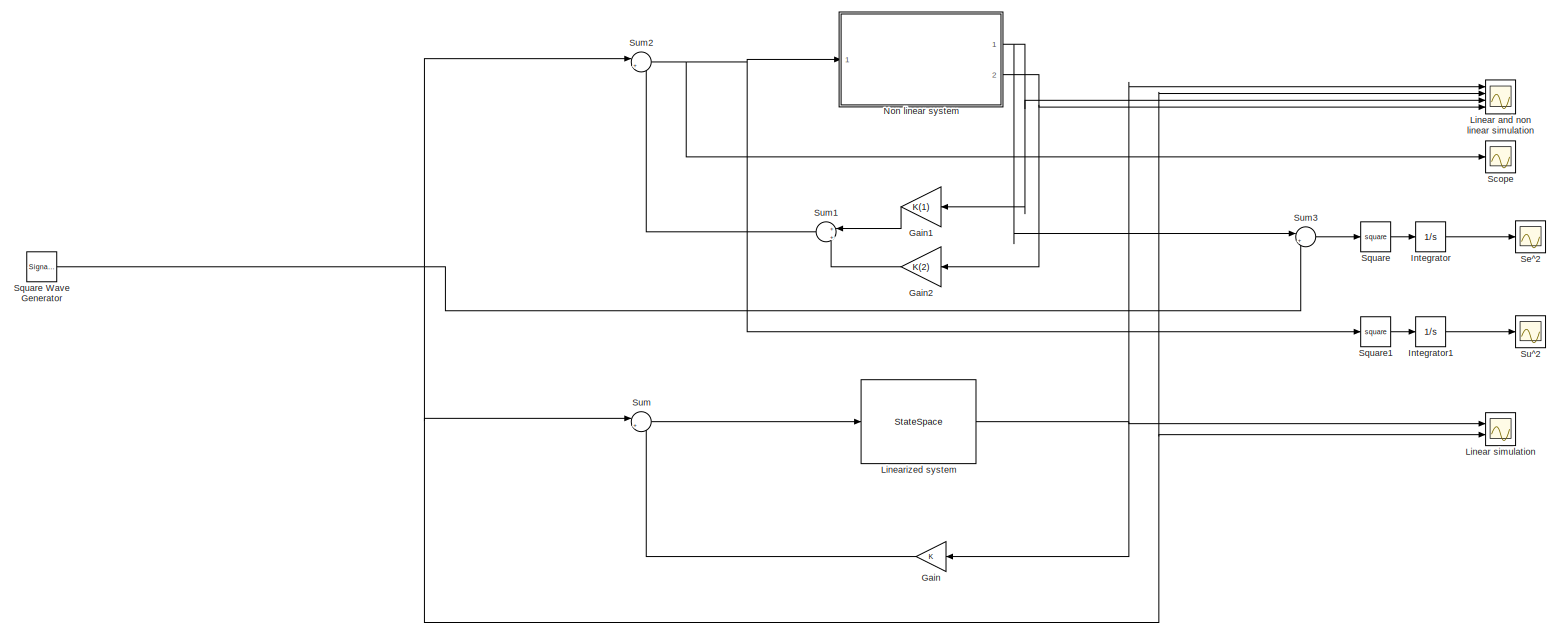
[diagram: root canvas - part 1/1, most of the canvas]
MODEL slx_dc5376960f76
KIND model
CONFIG AbsTol = auto
CONFIG EnableMultiTasking = off
CONFIG FixedStep = auto
CONFIG MaxStep = auto
CONFIG MinStep = auto
CONFIG RelTol = 1e-6
CONFIG SampleTimeConstraint = Unconstrained
CONFIG Solver = ode23
CONFIG SolverName = ode23
CONFIG StartTime = 0.0
CONFIG StopTime = 100
BLOCK [Gain] Gain
  Gain = K
  Multiplication = Matrix(K*u)
  NameLocation = top
BLOCK [Gain] Gain1
  Gain = K(1)
  NameLocation = top
BLOCK [Gain] Gain2
  Gain = K(2)
  NameLocation = top
BLOCK [Integrator] Integrator
  Ports = [1, 1]
BLOCK [Integrator] Integrator1
  Ports = [1, 1]
BLOCK [Scope] Linear and non linear simulation
  Floating = off
  NumInputPorts = 4
  Ports = [4]
  ScopeSpecificationString = Simulink.scopes.TimeScopeBlockCfg('CurrentConfiguration', extmgr.ConfigurationSet(extmgr.Configuration('Core','General UI',true),extmgr.Configuration('Core','Source UI',true),extmgr.Configuration('Sources','WiredSimulink',true),extmgr.Configuration('Visuals','Time Domain',true,'SerializedDisplays',{struct('MinYLimReal','-4.55337','MaxYLimReal','3.36304','YLabelReal','','MinYLimMag','0.00000','MaxY...<+1427ch>
BLOCK [Scope] Linear simulation
  Floating = off
  NumInputPorts = 2
  Ports = [2]
  ScopeSpecificationString = Simulink.scopes.TimeScopeBlockCfg('CurrentConfiguration', extmgr.ConfigurationSet(extmgr.Configuration('Core','General UI',true),extmgr.Configuration('Core','Source UI',true),extmgr.Configuration('Sources','WiredSimulink',true,'DataLoggingVariableName','ScopeData1'),extmgr.Configuration('Visuals','Time Domain',true,'SerializedDisplays',{struct('MinYLimReal','-2.15893','MaxYLimReal','4.32104','YLab...<+1441ch>
BLOCK [StateSpace] Linearized system
  A = A
  B = B
  C = [1 0;0 1]
  D = [0;0]
  InitialCondition = 2
  Ports = [1, 1]
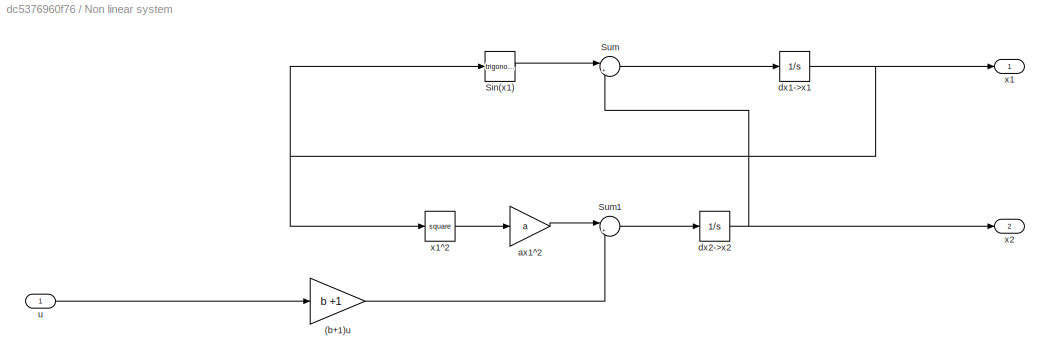
BLOCK [SubSystem] Non linear system
  Ports = [1, 2]
  RequestExecContextInheritance = off
BLOCK [Gain] Non linear system/(b+1)u
  Gain = b +1
BLOCK [Trigonometry] Non linear system/Sin(x1)
  Ports = [1, 1]
BLOCK [Sum] Non linear system/Sum
  Inputs = |++
  Ports = [2, 1]
BLOCK [Sum] Non linear system/Sum1
  Inputs = |++
  Ports = [2, 1]
BLOCK [Gain] Non linear system/ax1^2
  Gain = a
BLOCK [Integrator] Non linear system/dx1->x1
  Ports = [1, 1]
BLOCK [Integrator] Non linear system/dx2->x2
  Ports = [1, 1]
BLOCK [Inport] Non linear system/u
BLOCK [Outport] Non linear system/x1
BLOCK [Math] Non linear system/x1^2
  Operator = square
  Ports = [1, 1]
BLOCK [Outport] Non linear system/x2
  Port = 2
BLOCK [Scope] Scope
  Floating = off
  NumInputPorts = 1
  Ports = [1]
  ScopeSpecificationString = Simulink.scopes.TimeScopeBlockCfg('CurrentConfiguration', extmgr.ConfigurationSet(extmgr.Configuration('Core','General UI',true),extmgr.Configuration('Core','Source UI',true),extmgr.Configuration('Sources','WiredSimulink',true,'DataLoggingVariableName','ScopeData1'),extmgr.Configuration('Visuals','Time Domain',true,'SerializedDisplays',{struct('MinYLimReal','-2.33254','MaxYLimReal','3.26163','YLab...<+1363ch>
BLOCK [Scope] Se^2
  Floating = off
  NumInputPorts = 1
  Ports = [1]
  ScopeSpecificationString = Simulink.scopes.TimeScopeBlockCfg('CurrentConfiguration', extmgr.ConfigurationSet(extmgr.Configuration('Core','General UI',true),extmgr.Configuration('Core','Source UI',true),extmgr.Configuration('Sources','WiredSimulink',true,'DataLoggingVariableName','ScopeData1'),extmgr.Configuration('Visuals','Time Domain',true,'SerializedDisplays',{struct('MinYLimReal','-2.25868','MaxYLimReal','20.3281','YLab...<+1424ch>
BLOCK [Math] Square
  Operator = square
  Ports = [1, 1]
BLOCK [SignalGenerator] Square Wave Generator
  Frequency = 0.1
  Ports = [0, 1]
  Units = rad/sec
  WaveForm = square
BLOCK [Math] Square1
  Operator = square
  Ports = [1, 1]
BLOCK [Scope] Su^2
  Floating = off
  NumInputPorts = 1
  Ports = [1]
  ScopeSpecificationString = Simulink.scopes.TimeScopeBlockCfg('CurrentConfiguration', extmgr.ConfigurationSet(extmgr.Configuration('Core','General UI',true),extmgr.Configuration('Core','Source UI',true),extmgr.Configuration('Sources','WiredSimulink',true,'DataLoggingVariableName','ScopeData2'),extmgr.Configuration('Visuals','Time Domain',true,'SerializedDisplays',{struct('MinYLimReal','-4.19091','MaxYLimReal','37.71816','YLa...<+1374ch>
BLOCK [Sum] Sum
  Inputs = |+-
  Ports = [2, 1]
BLOCK [Sum] Sum1
  Inputs = +|+
  NameLocation = top
  Ports = [2, 1]
BLOCK [Sum] Sum2
  Inputs = |+-
  Ports = [2, 1]
BLOCK [Sum] Sum3
  Inputs = |+-
  Ports = [2, 1]
LINE Gain1:1 -> Sum1:1
LINE Gain2:1 -> Sum1:2
LINE Gain:1 -> Sum:2
LINE Integrator1:1 -> Su^2:1
LINE Integrator:1 -> Se^2:1
NET Linearized system:1 -> Gain:1, Linear and non linear simulation:1, Linear simulation:1
LINE Non linear system/(b+1)u:1 -> Non linear system/Sum1:2
LINE Non linear system/Sin(x1):1 -> Non linear system/Sum:1
LINE Non linear system/Sum1:1 -> Non linear system/dx2->x2:1
LINE Non linear system/Sum:1 -> Non linear system/dx1->x1:1
LINE Non linear system/ax1^2:1 -> Non linear system/Sum1:1
NET Non linear system/dx1->x1:1 -> Non linear system/Sin(x1):1, Non linear system/x1:1, Non linear system/x1^2:1
NET Non linear system/dx2->x2:1 -> Non linear system/Sum:2, Non linear system/x2:1
LINE Non linear system/u:1 -> Non linear system/(b+1)u:1
LINE Non linear system/x1^2:1 -> Non linear system/ax1^2:1
NET Non linear system:1 -> Gain1:1, Linear and non linear simulation:3, Sum3:1
NET Non linear system:2 -> Gain2:1, Linear and non linear simulation:4
NET Square Wave Generator:1 -> Linear and non linear simulation:2, Linear simulation:2, Sum2:1, Sum3:2, Sum:1
LINE Square1:1 -> Integrator1:1
LINE Square:1 -> Integrator:1
LINE Sum1:1 -> Sum2:2
NET Sum2:1 -> Non linear system:1, Scope:1, Square1:1
LINE Sum3:1 -> Square:1
LINE Sum:1 -> Linearized system:1
note: NET lines group one-source signal fan-out (src -> all destinations, sorted); 1:1 wires keep LINE
